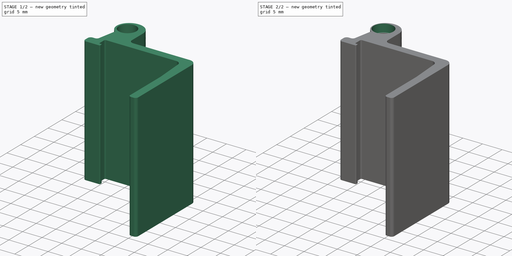
[diagram: build sequence overview — one tinted view per stage of 2, left to right]
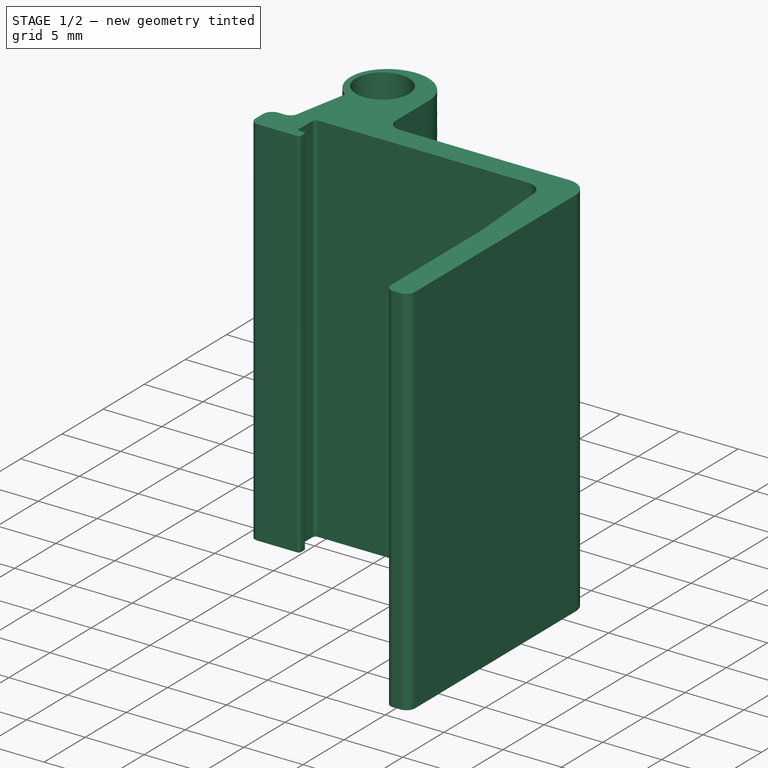
[diagram: stage 1 of 2 — iso view after this stage's code; geometry added in this stage tinted green]
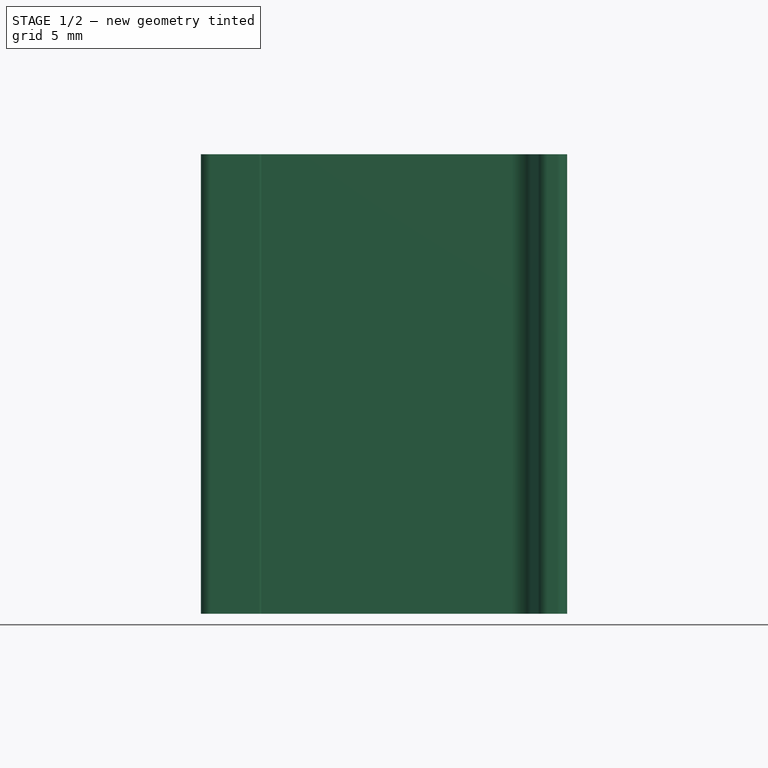
[diagram: stage 1 of 2 — front view after this stage's code; geometry added in this stage tinted green]
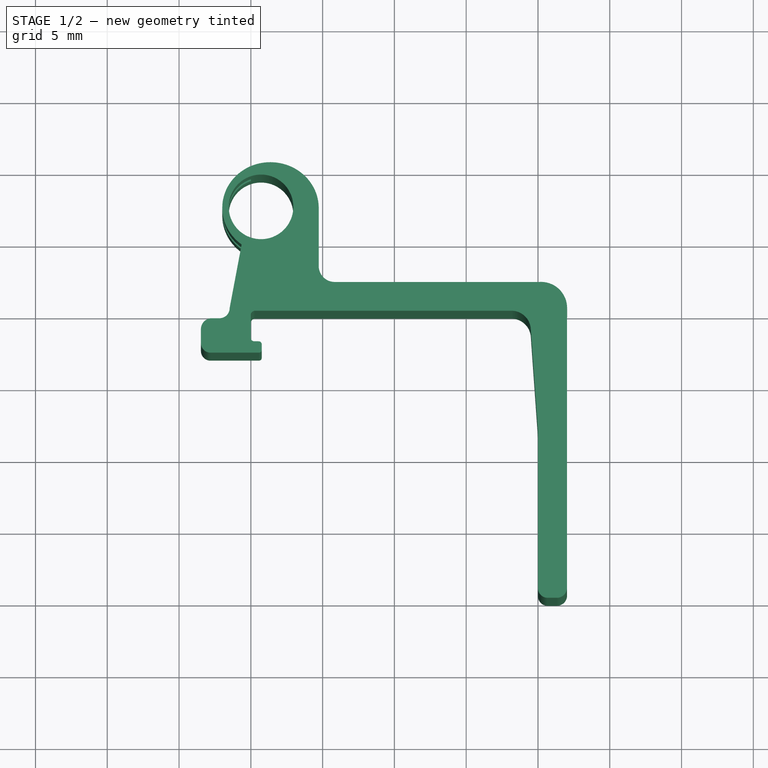
[diagram: stage 1 of 2 — top view after this stage's code; geometry added in this stage tinted green]
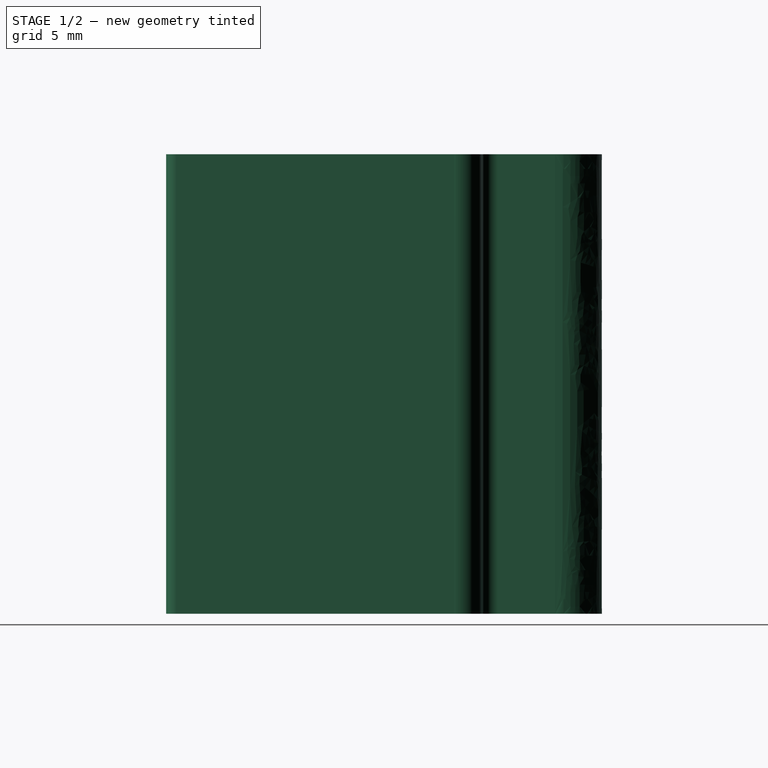
[diagram: stage 1 of 2 — right view after this stage's code; geometry added in this stage tinted green]
FCSTD DOCUMENT  (FreeCAD 1.0R39109 (Git))
Label: WebcamHolder
License: All rights reserved
LicenseURL: http://en.wikipedia.org/wiki/All_rights_reserved
objects: Sketcher::SketchObject×4, PartDesign::Pocket×3, PartDesign::Pad×1, PartDesign::Body×1
note: 21 computed .brp shape members not serialized (recipe doc carries the construction recipe); baked Part::Feature solids carry a one-line shape summary decoded from their .brp

FEATURE [Sketcher::SketchObject] Sketch
  ArcFitTolerance = 1e-06
  AttachmentSupport = -> [XY_Plane]
  FullyConstrained = false
  MakeInternals = false
  MapMode = 5
  sketch-geometry (41):
    g0: LineSegment StartX=20 StartY=0.668602 StartZ=0 EndX=20 EndY=11.6692 EndZ=0
    g1: LineSegment StartX=18.1713 StartY=20 StartZ=0 EndX=0.299523 EndY=20 EndZ=0
    g2: LineSegment StartX=22.0235 StartY=0.707739 StartZ=0 EndX=22.0235 EndY=20.0608 EndZ=0
    g3: LineSegment StartX=21.3158 StartY=-4.17991e-05 StartZ=0 EndX=20.6686 EndY=-4.17991e-05 EndZ=0
    g4: GeomPoint [constr] X=22.0235 Y=22.0031 Z=0
    g5: GeomPoint [constr] X=20 Y=20 Z=0
    g6: ArcOfCircle CenterX=21.3158 CenterY=0.707739 CenterZ=0 NormalX=0 NormalY=0 NormalZ=1 AngleXU=0 Radius=0.707781 StartAngle=4.71239 EndAngle=6.28319
    g7: GeomPoint [constr] X=22.0235 Y=-4.17991e-05 Z=0
    g8: ArcOfCircle CenterX=20.6686 CenterY=0.668602 CenterZ=0 NormalX=0 NormalY=0 NormalZ=1 AngleXU=0 Radius=0.668644 StartAngle=3.14159 EndAngle=4.71239
    g9: GeomPoint [constr] X=20 Y=-4.17991e-05 Z=0
    g10: LineSegment StartX=19.5 StartY=18.7368 StartZ=0 EndX=20 EndY=11.6692 EndZ=0
    g11: LineSegment StartX=0.756635 StartY=17.2778 StartZ=0 EndX=0.756635 EndY=17.6681 EndZ=0
    g12: GeomPoint [constr] X=0.756635 Y=17.0778 Z=0
    g13: GeomPoint [constr] X=0.756635 Y=17.8681 Z=0
    g14: ArcOfCircle CenterX=0.299523 CenterY=19.7 CenterZ=0 NormalX=0 NormalY=0 NormalZ=1 AngleXU=0 Radius=0.3 StartAngle=1.5708 EndAngle=3.12044
    g15: GeomPoint [constr] X=7e-16 Y=20 Z=0
    g16: Circle CenterX=0.70955 CenterY=27.2343 CenterZ=0 NormalX=0 NormalY=0 NormalZ=1 AngleXU=0 Radius=2.25
    g17: LineSegment StartX=0.556635 StartY=17.8681 StartZ=0 EndX=0.239575 EndY=17.8681 EndZ=0
    g18: ArcOfCircle CenterX=0.239575 CenterY=18.108 CenterZ=0 NormalX=0 NormalY=0 NormalZ=1 AngleXU=0 Radius=0.239985 StartAngle=3.14159 EndAngle=4.71239
    g19: ArcOfCircle CenterX=18.1469 CenterY=18.644 CenterZ=0 NormalX=0 NormalY=0 NormalZ=1 AngleXU=0 Radius=1.35626 StartAngle=0.068501 EndAngle=1.55279
    g20: ArcOfCircle CenterX=0.557302 CenterY=17.6687 CenterZ=0 NormalX=0 NormalY=0 NormalZ=1 AngleXU=0 Radius=0.199334 StartAngle=6.27984 EndAngle=7.85733
    g21: LineSegment StartX=-0.000409536 StartY=19.7063 StartZ=0 EndX=-0.000409536 EndY=18.108 EndZ=0
    g22: ArcOfEllipse CenterX=1.36918 CenterY=27.1612 CenterZ=0 NormalX=0 NormalY=0 NormalZ=1 MajorRadius=3.35892 MinorRadius=3.1856 AngleXU=3.11887 StartAngle=3.14159 EndAngle=7.23359
    g23: LineSegment [constr] StartX=-1.98887 StartY=27.2375 StartZ=0 EndX=4.72723 EndY=27.0848 EndZ=0
    g24: LineSegment [constr] StartX=1.2968 StartY=23.9764 StartZ=0 EndX=1.44156 EndY=30.3459 EndZ=0
    g25: GeomPoint [constr] X=0.304432 Y=27.1854 Z=0
    g26: GeomPoint [constr] X=2.43392 Y=27.137 Z=0
    g27: LineSegment StartX=20.0812 StartY=22.0031 StartZ=0 EndX=5.8454 EndY=22.0031 EndZ=0
    g28: LineSegment StartX=-2.17988 StartY=19.4773 StartZ=0 EndX=-2.71379 EndY=19.4773 EndZ=0
    g29: LineSegment StartX=0.556635 StartY=17.0778 StartZ=0 EndX=-2.80635 EndY=17.0778 EndZ=0
    g30: LineSegment StartX=-3.4778 StartY=18.7133 StartZ=0 EndX=-3.4778 EndY=17.7492 EndZ=0
    g31: ArcOfCircle CenterX=-2.17988 CenterY=20.1794 CenterZ=0 NormalX=0 NormalY=0 NormalZ=1 AngleXU=0 Radius=0.702084 StartAngle=4.71239 EndAngle=6.28319
    g32: ArcOfCircle CenterX=-2.71379 CenterY=18.7133 CenterZ=0 NormalX=0 NormalY=0 NormalZ=1 AngleXU=0 Radius=0.764007 StartAngle=1.5708 EndAngle=3.14159
    g33: ArcOfCircle CenterX=-2.80635 CenterY=17.7492 CenterZ=0 NormalX=0 NormalY=0 NormalZ=1 AngleXU=0 Radius=0.671445 StartAngle=3.14159 EndAngle=4.71239
    g34: GeomPoint [constr] X=-3.4778 Y=17.0778 Z=0
    g35: ArcOfCircle CenterX=5.8454 CenterY=23.1212 CenterZ=0 NormalX=0 NormalY=0 NormalZ=1 AngleXU=0 Radius=1.11817 StartAngle=3.14198 EndAngle=4.71239
    g36: GeomPoint [constr] X=4.72766 Y=22.0031 Z=0
    g37: LineSegment StartX=4.72723 StartY=27.0848 StartZ=0 EndX=4.72723 EndY=23.1208 EndZ=0
    g38: LineSegment StartX=-0.641937 StartY=24.6142 StartZ=0 EndX=-1.4778 EndY=20.1794 EndZ=0
    g39: ArcOfCircle CenterX=0.570085 CenterY=17.2643 CenterZ=0 NormalX=0 NormalY=0 NormalZ=1 AngleXU=0 Radius=0.187034 StartAngle=4.64041 EndAngle=6.35516
    g40: ArcOfCircle CenterX=20.2131 CenterY=20.1927 CenterZ=0 NormalX=0 NormalY=0 NormalZ=1 AngleXU=0 Radius=1.81522 StartAngle=6.21047 EndAngle=7.9267
  constraints (53):
    c: Horizontal(g1)
    c: Vertical(g0)
    c: Distance(g9,g-1) = 20
    c: Distance(g-1,g15) = 20
    c: Vertical(g2)
    c: Horizontal(g3)
    c: PointOnObject(g4,g2)
    c: PointOnObject(g5,g1)
    c: PointOnObject(g5,g0)
    c: PointOnObject(g7,g2)
    c: PointOnObject(g7,g3)
    c: Tangent(g2,g6) = -1.5708
    c: Tangent(g3,g6) = 1.5708
    c: PointOnObject(g9,g0)
    c: PointOnObject(g9,g3)
    c: Tangent(g0,g8) = 1.5708
    c: Tangent(g3,g8) = 1.5708
    c: Coincident(g0,g10)
    c: Vertical(g11)
    c: PointOnObject(g12,g11)
    c: PointOnObject(g13,g11)
    c: PointOnObject(g15,g1)
    c: Tangent(g1,g14) = -1.5708
    c: Diameter(g16) = 4.5
    c: Radius(g14) = 0.3
    c: Tangent(g17,g18) = 1.5708
    c: Horizontal(g17)
    c: Coincident(g19,g1)
    c: Coincident(g19,g10)
    c: Coincident(g20,g17)
    c: Coincident(g20,g11)
    c: Coincident(g21,g14)
    c: Coincident(g21,g18)
    c: Vertical(g21)
    c: InternalAlignment(g23-g26 -> g22) x4
    c: Tangent(g28,g31) = 1.5708
    c: Tangent(g28,g32) = -1.5708
    c: Tangent(g30,g32) = -1.5708
    c: PointOnObject(g34,g30)
    c: PointOnObject(g34,g29)
    c: Tangent(g30,g33) = -1.5708
    c: Tangent(g29,g33) = 1.5708
    c: PointOnObject(g36,g27)
    c: Tangent(g27,g35) = 1.5708
    c: Coincident(g37,g22)
    c: Coincident(g37,g35)
    c: Vertical(g37)
    c: Coincident(g38,g22)
    c: Coincident(g38,g31)
    c: Coincident(g39,g11)
    c: Coincident(g39,g29)
    c: Coincident(g40,g27)
    c: Coincident(g40,g2)
FEATURE [PartDesign::Pad] Pad
  Direction = (0,0,1)
  Length = 32
  Length2 = 10
  Profile = -> Sketch
  ReferenceAxis = -> Sketch [N_Axis]
  Suppressed = false
  Type = 0
FEATURE [Sketcher::SketchObject] Sketch005
  ArcFitTolerance = 1e-06
  AttachmentSupport = -> [YZ_Plane]
  FullyConstrained = false
  MakeInternals = false
  MapMode = 5
  Placement = pos=(0,0,0) rot=(0.57735,0.57735,0.57735;2.0944rad)
  sketch-geometry (13):
    g0: LineSegment [constr] StartX=0 StartY=0 StartZ=0 EndX=34 EndY=0 EndZ=0
    g1: LineSegment [constr] StartX=34 StartY=0 StartZ=0 EndX=34 EndY=12.15 EndZ=0
    g2: LineSegment [constr] StartX=34 StartY=12.15 StartZ=0 EndX=0 EndY=12.15 EndZ=0
    g3: LineSegment [constr] StartX=0 StartY=12.15 StartZ=0 EndX=0 EndY=0 EndZ=0
    g4: LineSegment [constr] StartX=0.707652 StartY=32 StartZ=0 EndX=0.707652 EndY=19.85 EndZ=0
    g5: LineSegment [constr] StartX=0.707652 StartY=19.85 StartZ=0 EndX=38.0599 EndY=19.85 EndZ=0
    g6: LineSegment [constr] StartX=38.0599 StartY=19.85 StartZ=0 EndX=38.0599 EndY=32 EndZ=0
    g7: LineSegment [constr] StartX=38.0599 StartY=32 StartZ=0 EndX=0.707652 EndY=32 EndZ=0
    g8: LineSegment StartX=30.3182 StartY=19.85 StartZ=0 EndX=20.9429 EndY=19.85 EndZ=0
    g9: LineSegment StartX=20.9429 StartY=19.85 StartZ=0 EndX=20.9429 EndY=12.15 EndZ=0
    g10: LineSegment StartX=20.9429 StartY=12.15 StartZ=0 EndX=30.3182 EndY=12.15 EndZ=0
    g11: LineSegment StartX=30.3182 StartY=12.15 StartZ=0 EndX=30.3182 EndY=19.85 EndZ=0
    g12: LineSegment [constr] StartX=20.9429 StartY=12.15 StartZ=0 EndX=20.9429 EndY=-7.85 EndZ=0
  constraints (34):
    c: Coincident(g0,g1)
    c: Coincident(g1,g2)
    c: Coincident(g2,g3)
    c: Coincident(g3,g0)
    c: Horizontal(g0)
    c: Horizontal(g2)
    c: Vertical(g1)
    c: Vertical(g3)
    c: Distance(g1,g3) = 34
    c: Coincident(g0,g-1)
    c: Coincident(g4,g5)
    c: Coincident(g5,g6)
    c: Coincident(g6,g7)
    c: Coincident(g7,g4)
    c: Vertical(g4)
    c: Vertical(g6)
    c: Horizontal(g5)
    c: Horizontal(g7)
    c: Coincident(g4,g-3)
    c: Coincident(g8,g9)
    c: Coincident(g9,g10)
    c: Coincident(g10,g11)
    c: Coincident(g11,g8)
    c: Horizontal(g8)
    c: Horizontal(g10)
    c: Vertical(g9)
    c: Vertical(g11)
    c: PointOnObject(g8,g5)
    c: PointOnObject(g9,g2)
    c: Distance(g11) = 7.7
    c: Equal(g1,g6)
    c: Distance(g12) = 20
    c: Vertical(g12)
    c: Coincident(g12,g9)
FEATURE [PartDesign::Pocket] Pocket003
  BaseFeature = -> Pad
  Direction = (-1,0,0)
  Length = 9
  Length2 = 5
  Profile = -> Sketch005
  ReferenceAxis = -> Sketch005 [N_Axis]
  Suppressed = false
  Type = 0
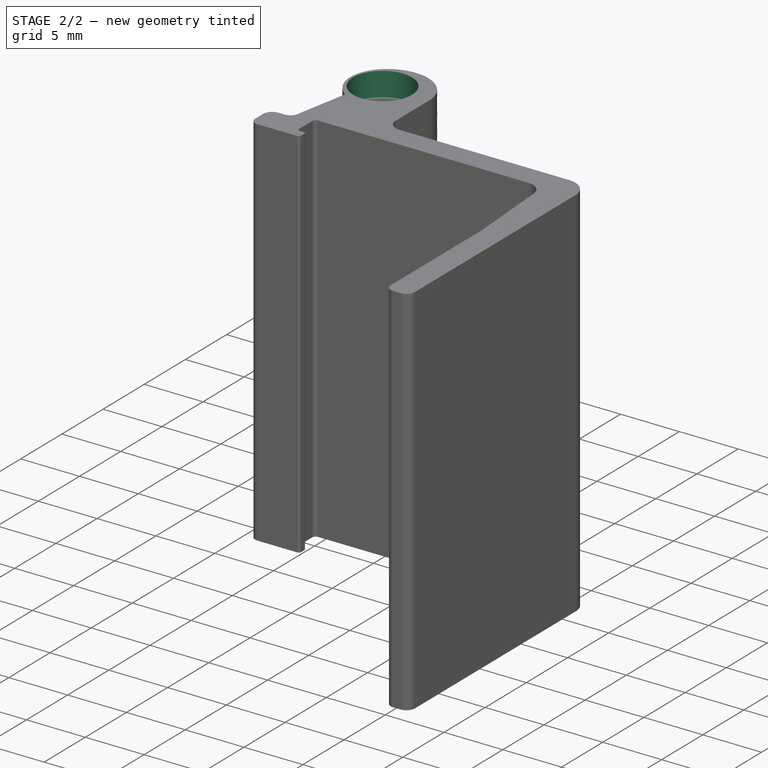
[diagram: stage 2 of 2 — iso view after this stage's code; geometry added in this stage tinted green]
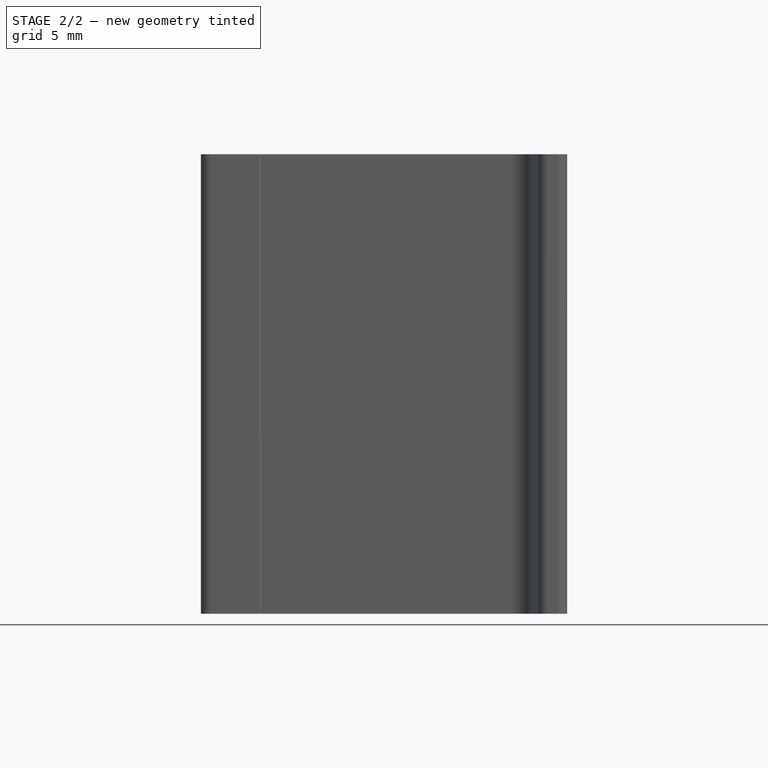
[diagram: stage 2 of 2 — front view after this stage's code; geometry added in this stage tinted green]
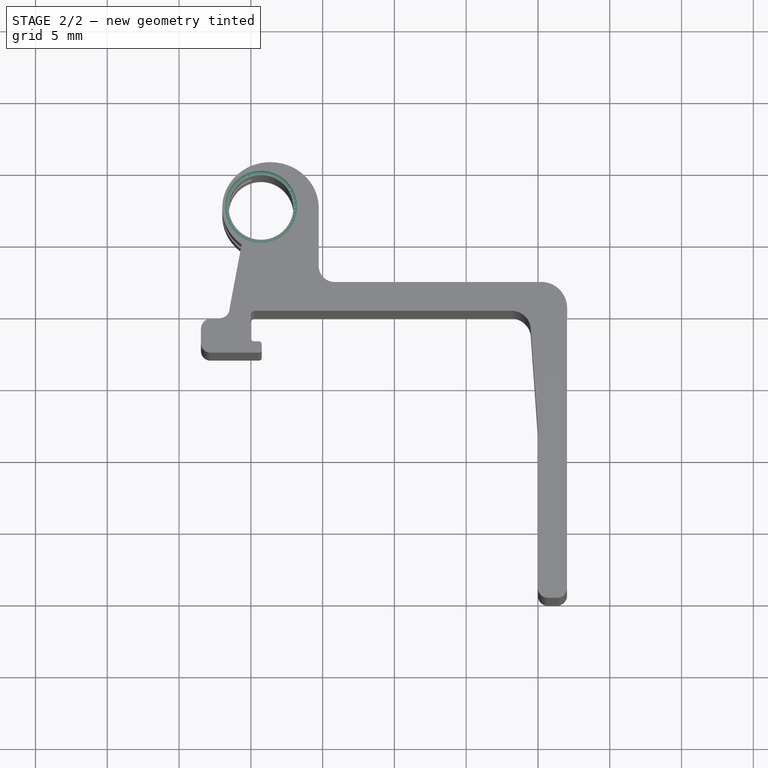
[diagram: stage 2 of 2 — top view after this stage's code; geometry added in this stage tinted green]
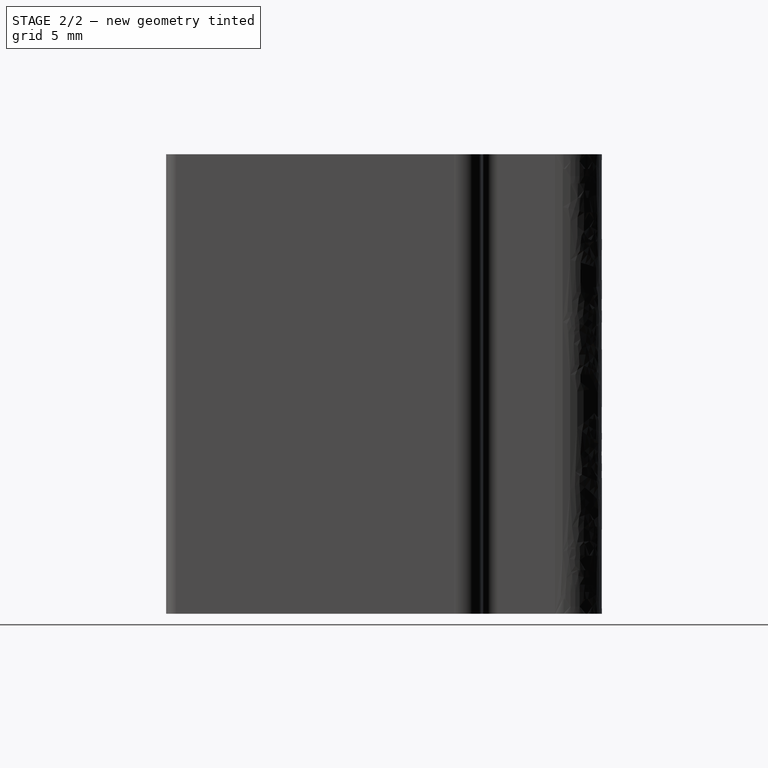
[diagram: stage 2 of 2 — right view after this stage's code; geometry added in this stage tinted green]
FEATURE [Sketcher::SketchObject] Sketch006
  ArcFitTolerance = 1e-06
  AttachmentSupport = -> [Pocket003]
  ExternalGeometry = -> [Pocket003]
  FullyConstrained = true
  MakeInternals = false
  MapMode = 5
  Placement = pos=(0,0,32) rot=(0,0,1;0rad)
  sketch-geometry (1):
    g0: Circle CenterX=0.70955 CenterY=27.2343 CenterZ=0 NormalX=0 NormalY=0 NormalZ=1 AngleXU=0 Radius=2.5
  constraints (2):
    c: Diameter(g0) = 5
    c: Coincident(g0,g-3)
FEATURE [Sketcher::SketchObject] Sketch007
  ArcFitTolerance = 1e-06
  AttachmentSupport = -> [Pocket003]
  ExternalGeometry = -> [Sketch]
  FullyConstrained = true
  MakeInternals = false
  MapMode = 5
  Placement = pos=(0,0,0) rot=(1,0,0;3.14159rad)
  sketch-geometry (1):
    g0: Circle CenterX=0.70955 CenterY=-27.2343 CenterZ=0 NormalX=0 NormalY=0 NormalZ=1 AngleXU=0 Radius=2.5
  constraints (2):
    c: Diameter(g0) = 5
    c: Coincident(g0,g-3)
FEATURE [PartDesign::Pocket] Pocket
  BaseFeature = -> Pocket003
  Direction = (0,0,-1)
  Length = 2
  Length2 = 5
  Profile = -> Sketch006
  ReferenceAxis = -> Sketch006 [N_Axis]
  Suppressed = false
  Type = 0
FEATURE [PartDesign::Pocket] Pocket004
  BaseFeature = -> Pocket
  Direction = (0,0,1)
  Length = 2
  Length2 = 5
  Profile = -> Sketch007
  ReferenceAxis = -> Sketch007 [N_Axis]
  Suppressed = false
  Type = 0
FEATURE [PartDesign::Body] Body
  AllowCompound = false
  Group = -> [Sketch,Pad,Sketch005,Pocket003,Sketch006,Sketch007,Pocket,Pocket004]
  Origin = -> Origin
  Tip = -> Pocket004
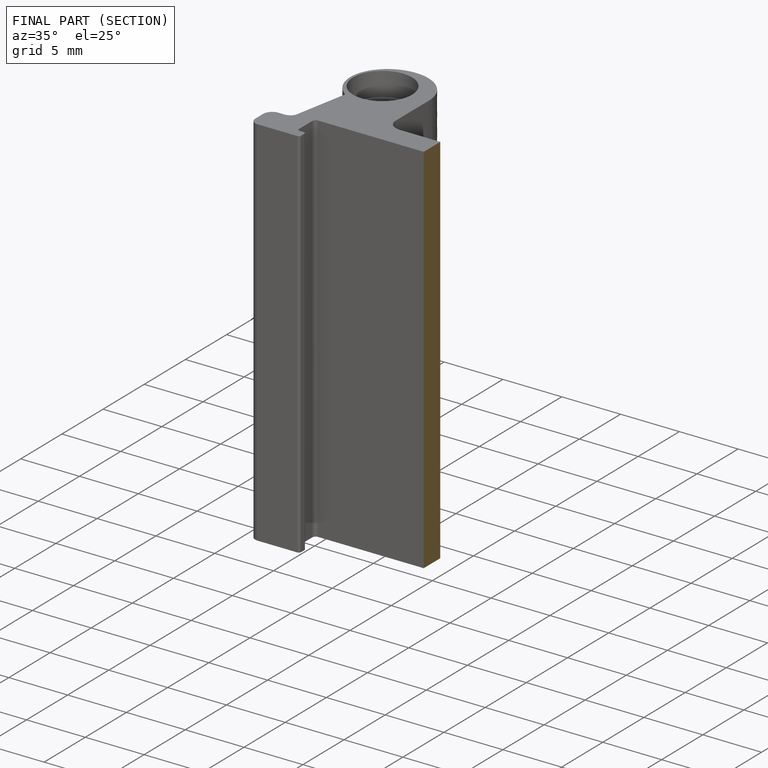
[diagram: finished part — half-section view (interior)]
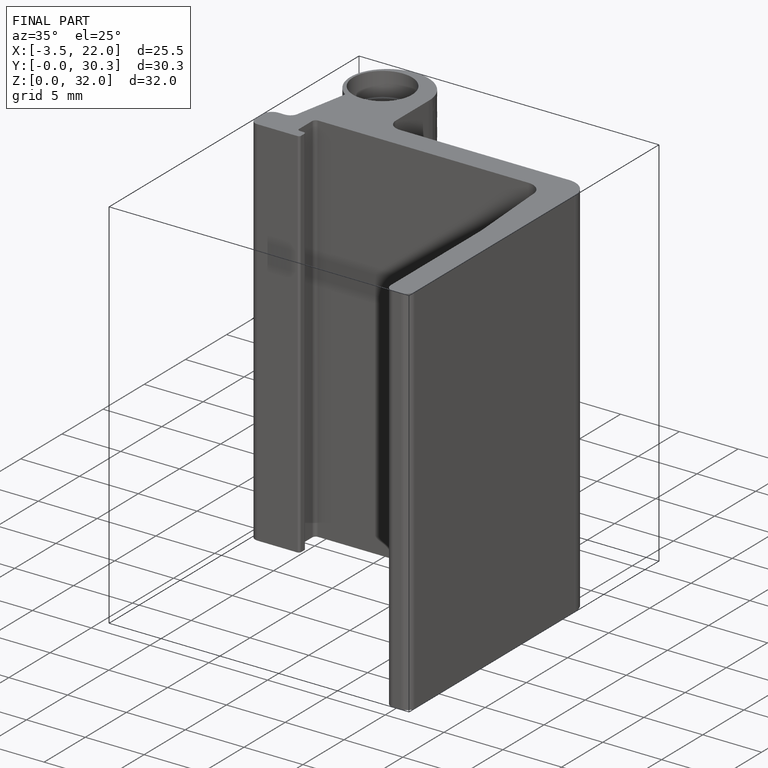
[diagram: finished part — iso view with bounding-box wireframe]
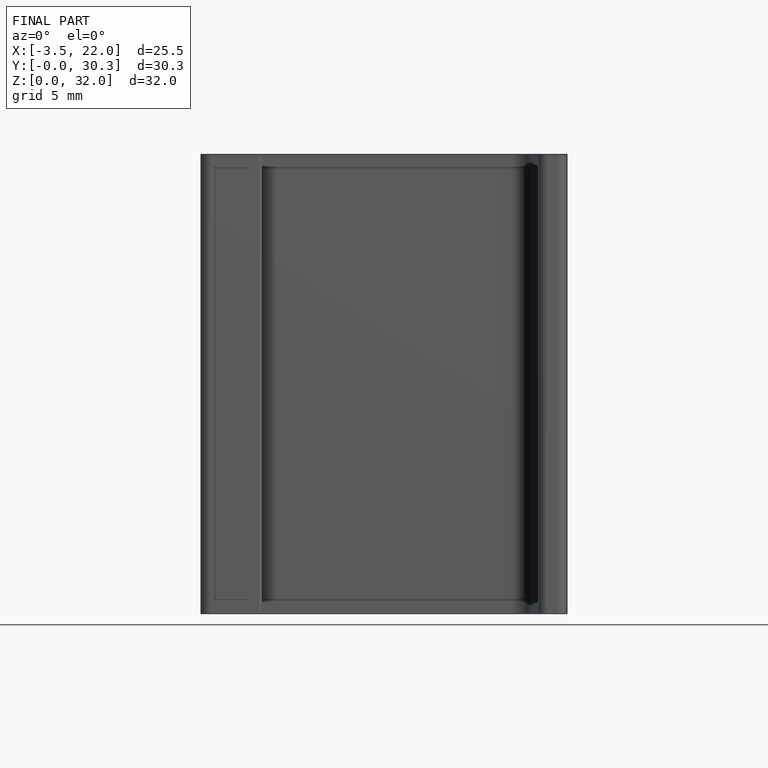
[diagram: finished part — front view with bounding-box wireframe]
